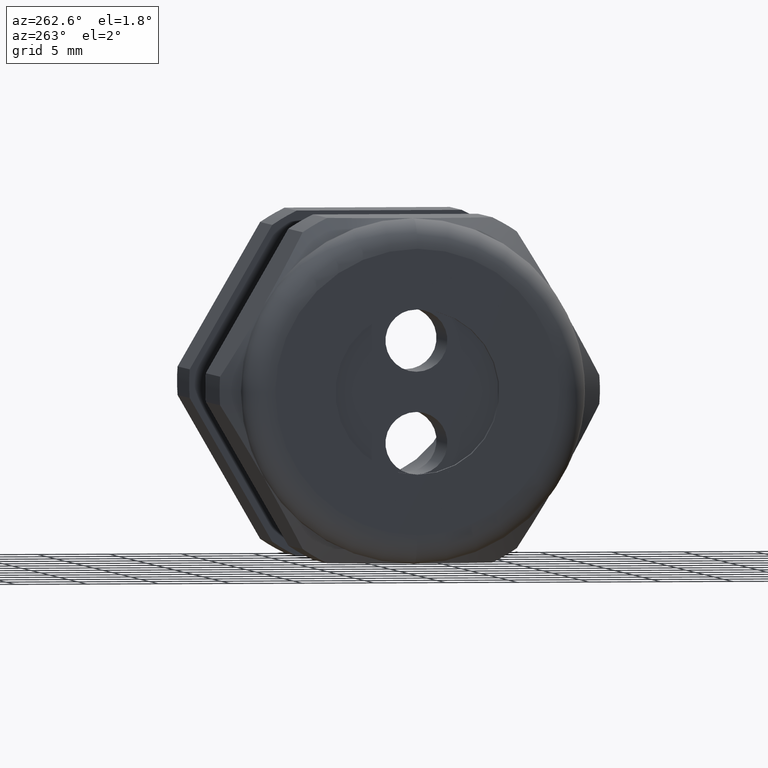
[diagram: clean part render]
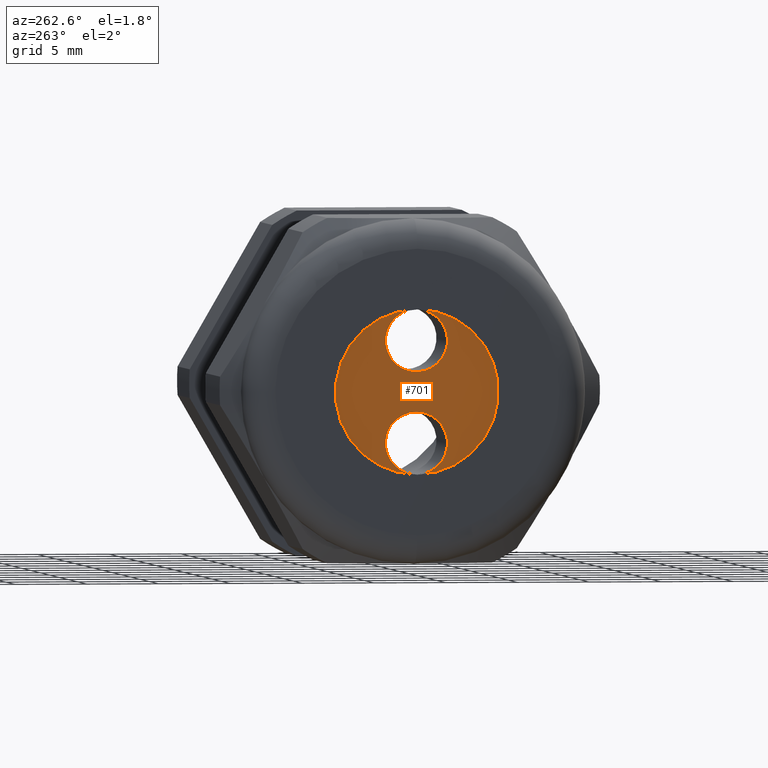
[diagram: same view with one face highlighted and labeled with its STEP entity id]
A machine part, auxiliary view. The second image highlights one B-rep face of the part: STEP entity #701.
In plain terms, the highlighted planar face has unit normal (-1, 0, 0).
Its self-contained STEP definition (entity closure, byte-faithful):
#621 = ORIENTED_EDGE ( 'NONE', *, *, #649, .T. ) ;
#622 = EDGE_LOOP ( 'NONE', ( #623, #621 ) ) ;
#623 = ORIENTED_EDGE ( 'NONE', *, *, #698, .T. ) ;
#649 = EDGE_CURVE ( 'NONE', #650, #651, #2120, .T. ) ;
#650 = VERTEX_POINT ( 'NONE', #2116 ) ;
#651 = VERTEX_POINT ( 'NONE', #2115 ) ;
#671 = VERTEX_POINT ( 'NONE', #2141 ) ;
#673 = EDGE_CURVE ( 'NONE', #671, #674, #2140, .T. ) ;
#674 = VERTEX_POINT ( 'NONE', #2135 ) ;
#684 = VERTEX_POINT ( 'NONE', #2173 ) ;
#686 = EDGE_CURVE ( 'NONE', #684, #687, #2172, .T. ) ;
#687 = VERTEX_POINT ( 'NONE', #2167 ) ;
#698 = EDGE_CURVE ( 'NONE', #651, #650, #2208, .T. ) ;
#701 = ADVANCED_FACE ( 'NONE', ( #2209, #2203, #2202 ), #2201, .T. ) ;
#702 = EDGE_LOOP ( 'NONE', ( #703, #705 ) ) ;
#703 = ORIENTED_EDGE ( 'NONE', *, *, #704, .F. ) ;
#704 = EDGE_CURVE ( 'NONE', #674, #671, #2196, .T. ) ;
#705 = ORIENTED_EDGE ( 'NONE', *, *, #673, .F. ) ;
#706 = EDGE_LOOP ( 'NONE', ( #707, #709 ) ) ;
#707 = ORIENTED_EDGE ( 'NONE', *, *, #708, .F. ) ;
#708 = EDGE_CURVE ( 'NONE', #687, #684, #2255, .T. ) ;
#709 = ORIENTED_EDGE ( 'NONE', *, *, #686, .F. ) ;
#2115 = CARTESIAN_POINT ( 'NONE',  ( -1.350000000000000100, 0.0000000000000000000, 0.2249999999999999800 ) ) ;
#2116 = CARTESIAN_POINT ( 'NONE',  ( -1.350000000000000100, 2.755455298081544500E-017, -0.2249999999999999800 ) ) ;
#2117 = DIRECTION ( 'NONE',  ( 0.0000000000000000000, 0.0000000000000000000, 1.000000000000000000 ) ) ;
#2118 = DIRECTION ( 'NONE',  ( -1.000000000000000000, 0.0000000000000000000, 0.0000000000000000000 ) ) ;
#2119 = AXIS2_PLACEMENT_3D ( 'NONE', #2126, #2118, #2117 ) ;
#2120 = CIRCLE ( 'NONE', #2119, 0.2249999999999999800 ) ;
#2126 = CARTESIAN_POINT ( 'NONE',  ( -1.350000000000000100, 0.0000000000000000000, 0.0000000000000000000 ) ) ;
#2135 = CARTESIAN_POINT ( 'NONE',  ( -1.350000000000000100, 9.752411324250726500E-016, 0.2246600000000000300 ) ) ;
#2136 = DIRECTION ( 'NONE',  ( 0.0000000000000000000, -6.982966722218764100E-015, -1.000000000000000000 ) ) ;
#2137 = DIRECTION ( 'NONE',  ( -1.000000000000000000, 0.0000000000000000000, 0.0000000000000000000 ) ) ;
#2138 = CARTESIAN_POINT ( 'NONE',  ( -1.350000000000000100, 9.752411324250726500E-016, 0.1396600000000000100 ) ) ;
#2139 = AXIS2_PLACEMENT_3D ( 'NONE', #2138, #2137, #2136 ) ;
#2140 = CIRCLE ( 'NONE', #2139, 0.08499999999999999200 ) ;
#2141 = CARTESIAN_POINT ( 'NONE',  ( -1.350000000000000100, 9.856506302178250400E-016, 0.05466000000000000000 ) ) ;
#2167 = CARTESIAN_POINT ( 'NONE',  ( -1.350000000000000100, 0.0000000000000000000, -0.05466000000000000000 ) ) ;
#2168 = DIRECTION ( 'NONE',  ( 0.0000000000000000000, 0.0000000000000000000, 1.000000000000000000 ) ) ;
#2169 = DIRECTION ( 'NONE',  ( -1.000000000000000000, 0.0000000000000000000, 0.0000000000000000000 ) ) ;
#2170 = CARTESIAN_POINT ( 'NONE',  ( -1.350000000000000100, 0.0000000000000000000, -0.1396600000000000100 ) ) ;
#2171 = AXIS2_PLACEMENT_3D ( 'NONE', #2170, #2169, #2168 ) ;
#2172 = CIRCLE ( 'NONE', #2171, 0.08499999999999999200 ) ;
#2173 = CARTESIAN_POINT ( 'NONE',  ( -1.350000000000000100, 1.040949779275249800E-017, -0.2246600000000000300 ) ) ;
#2192 = DIRECTION ( 'NONE',  ( 0.0000000000000000000, -6.982966722218764100E-015, -1.000000000000000000 ) ) ;
#2193 = DIRECTION ( 'NONE',  ( -1.000000000000000000, 0.0000000000000000000, 0.0000000000000000000 ) ) ;
#2194 = CARTESIAN_POINT ( 'NONE',  ( -1.350000000000000100, 9.752411324250726500E-016, 0.1396600000000000100 ) ) ;
#2195 = AXIS2_PLACEMENT_3D ( 'NONE', #2194, #2193, #2192 ) ;
#2196 = CIRCLE ( 'NONE', #2195, 0.08499999999999999200 ) ;
#2197 = DIRECTION ( 'NONE',  ( 0.0000000000000000000, 0.0000000000000000000, 1.000000000000000000 ) ) ;
#2198 = DIRECTION ( 'NONE',  ( -1.000000000000000000, 0.0000000000000000000, 0.0000000000000000000 ) ) ;
#2199 = CARTESIAN_POINT ( 'NONE',  ( -1.350000000000000100, 0.0000000000000000000, 0.0000000000000000000 ) ) ;
#2200 = AXIS2_PLACEMENT_3D ( 'NONE', #2199, #2198, #2197 ) ;
#2201 = PLANE ( 'NONE',  #2200 ) ;
#2202 = FACE_OUTER_BOUND ( 'NONE', #622, .T. ) ;
#2203 = FACE_BOUND ( 'NONE', #706, .T. ) ;
#2204 = DIRECTION ( 'NONE',  ( 0.0000000000000000000, 0.0000000000000000000, 1.000000000000000000 ) ) ;
#2205 = DIRECTION ( 'NONE',  ( -1.000000000000000000, 0.0000000000000000000, 0.0000000000000000000 ) ) ;
#2206 = CARTESIAN_POINT ( 'NONE',  ( -1.350000000000000100, 0.0000000000000000000, 0.0000000000000000000 ) ) ;
#2207 = AXIS2_PLACEMENT_3D ( 'NONE', #2206, #2205, #2204 ) ;
#2208 = CIRCLE ( 'NONE', #2207, 0.2249999999999999800 ) ;
#2209 = FACE_BOUND ( 'NONE', #702, .T. ) ;
#2251 = DIRECTION ( 'NONE',  ( 0.0000000000000000000, 0.0000000000000000000, 1.000000000000000000 ) ) ;
#2252 = DIRECTION ( 'NONE',  ( -1.000000000000000000, 0.0000000000000000000, 0.0000000000000000000 ) ) ;
#2253 = CARTESIAN_POINT ( 'NONE',  ( -1.350000000000000100, 0.0000000000000000000, -0.1396600000000000100 ) ) ;
#2254 = AXIS2_PLACEMENT_3D ( 'NONE', #2253, #2252, #2251 ) ;
#2255 = CIRCLE ( 'NONE', #2254, 0.08499999999999999200 ) ;